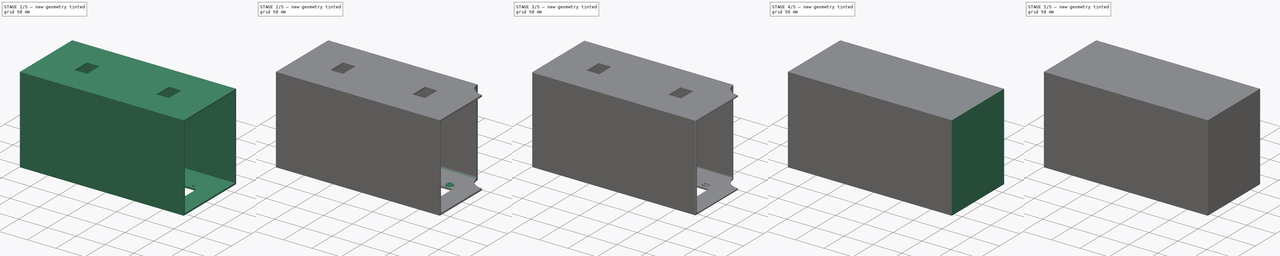
[diagram: build sequence overview — one tinted view per stage of 5, left to right]
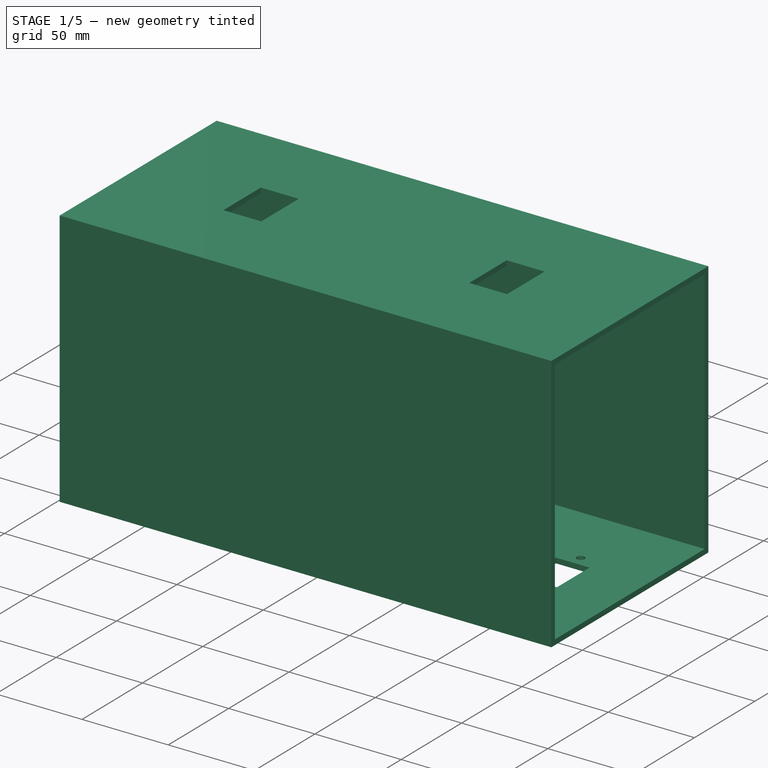
[diagram: stage 1 of 5 — iso view after this stage's code; geometry added in this stage tinted green]
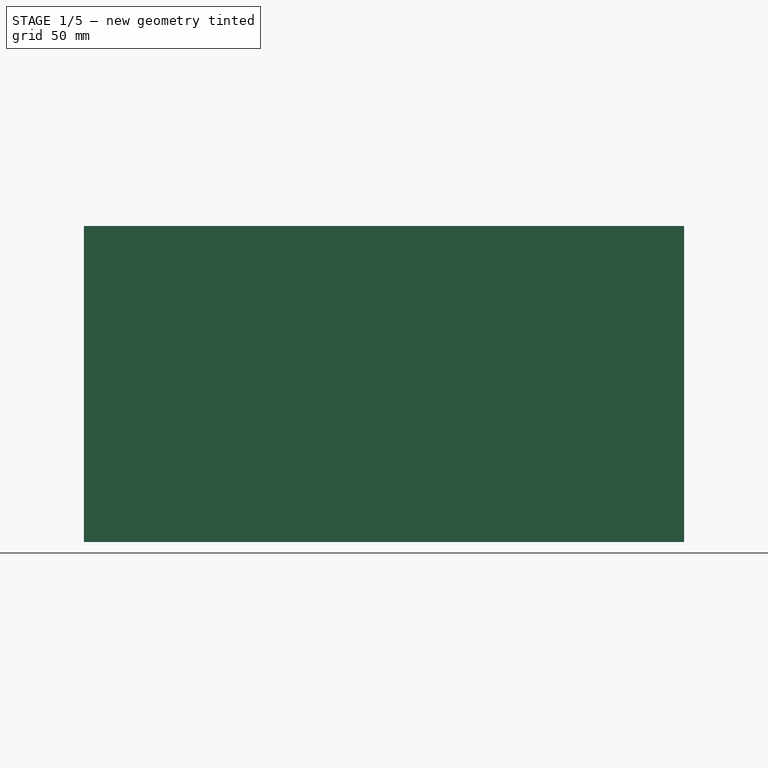
[diagram: stage 1 of 5 — front view after this stage's code; geometry added in this stage tinted green]
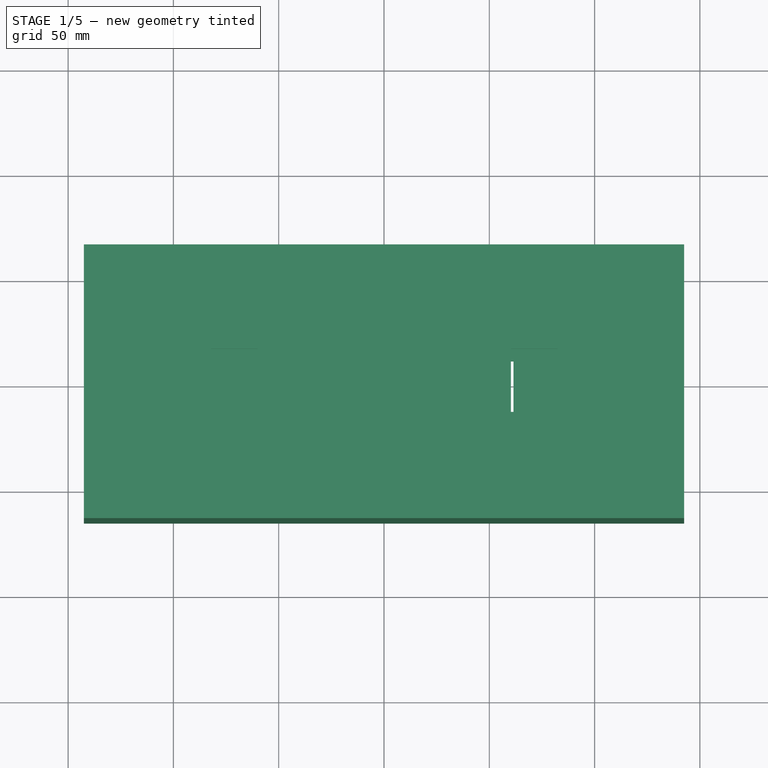
[diagram: stage 1 of 5 — top view after this stage's code; geometry added in this stage tinted green]
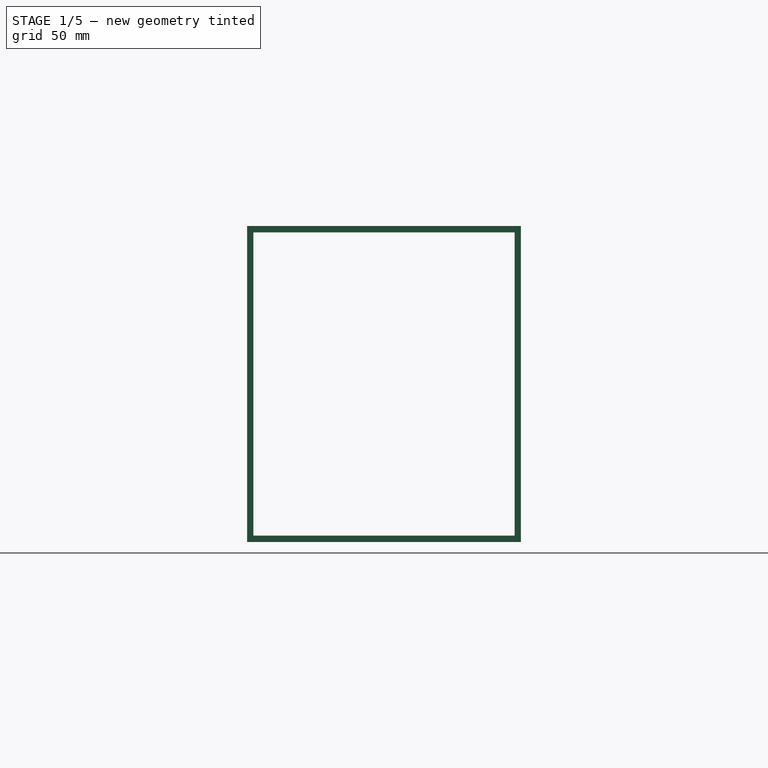
[diagram: stage 1 of 5 — right view after this stage's code; geometry added in this stage tinted green]
FCSTD DOCUMENT  (FreeCAD 0.22R36677 (Git))
Label: endcaps
License: All rights reserved
LicenseURL: http://en.wikipedia.org/wiki/All_rights_reserved
objects: Sketcher::SketchObject×11, PartDesign::Pad×6, PartDesign::Chamfer×5, PartDesign::Body×5, PartDesign::Pocket×4, PartDesign::Thickness×1, Spreadsheet::Sheet×1, PartDesign::Fillet×1
note: 50 computed .brp shape members not serialized (recipe doc carries the construction recipe); baked Part::Feature solids carry a one-line shape summary decoded from their .brp

FEATURE [PartDesign::Body] Body003  label="socket fitment"
  Group = -> [Sketch006,Pad003,Chamfer001,Chamfer002]
  Origin = -> Origin003
  Tip = -> Chamfer002
FEATURE [Sketcher::SketchObject] Sketch007
  AttachmentSupport = -> [YZ_Plane004]
  FullyConstrained = true
  MapMode = 5
  Placement = pos=(0,0,0) rot=(0.57735,0.57735,0.57735;2.0944rad)
  expr: Constraints[18] = <<q>>.right_depth
  expr: Constraints[19] = <<q>>.right_height
  expr: Constraints[20] = <<q>>.wall
  expr: Constraints[21] = <<q>>.wall
  sketch-geometry (8):
    g0: LineSegment StartX=-65 StartY=75 StartZ=0 EndX=-65 EndY=-75 EndZ=0
    g1: LineSegment StartX=-65 StartY=-75 StartZ=0 EndX=65 EndY=-75 EndZ=0
    g2: LineSegment StartX=65 StartY=-75 StartZ=0 EndX=65 EndY=75 EndZ=0
    g3: LineSegment StartX=65 StartY=75 StartZ=0 EndX=-65 EndY=75 EndZ=0
    g4: LineSegment StartX=-62 StartY=72 StartZ=0 EndX=-62 EndY=-72 EndZ=0
    g5: LineSegment StartX=-62 StartY=-72 StartZ=0 EndX=62 EndY=-72 EndZ=0
    g6: LineSegment StartX=62 StartY=-72 StartZ=0 EndX=62 EndY=72 EndZ=0
    g7: LineSegment StartX=62 StartY=72 StartZ=0 EndX=-62 EndY=72 EndZ=0
  constraints (22):
    c: Coincident(g0,g1)
    c: Coincident(g1,g2)
    c: Coincident(g2,g3)
    c: Coincident(g3,g0)
    c: Vertical(g0)
    c: Vertical(g2)
    c: Horizontal(g1)
    c: Horizontal(g3)
    c: Coincident(g4,g5)
    c: Coincident(g5,g6)
    c: Coincident(g6,g7)
    c: Coincident(g7,g4)
    c: Vertical(g4)
    c: Vertical(g6)
    c: Horizontal(g5)
    c: Horizontal(g7)
    c: Symmetric(g0,g2,g-1)
    c: Symmetric(g4,g6,g-1)
    c: DistanceX(g3,g3) = 130
    c: DistanceY(g2,g2) = 150
    c: DistanceX(g6,g2) = 3
    c: DistanceY(g6,g2) = 3
FEATURE [PartDesign::Pad] Pad004
  Direction = (1,0,0)
  Length = 285
  Length2 = 10
  Midplane = true
  Placement = pos=(0,0,0) rot=(1,1,1;2.0944rad)
  Profile = -> Sketch007
  ReferenceAxis = -> Sketch007 [N_Axis]
  Suppressed = false
  Type = 0
  expr: Length = <<q>>.right_width
FEATURE [Sketcher::SketchObject] Sketch008
  AttachmentSupport = -> [Pad004]
  FullyConstrained = true
  MapMode = 5
  Placement = pos=(-8.3e-15,2.5e-14,75) rot=(0,0,-1;1.5708rad)
  expr: Constraints[22] = <<q>>.right_width / 4
  expr: Constraints[8] = <<q>>.switch_width
  expr: Constraints[9] = <<q>>.switch_depth
  sketch-geometry (10):
    g0: LineSegment StartX=-15.5 StartY=82.25 StartZ=0 EndX=-15.5 EndY=60.25 EndZ=0
    g1: LineSegment StartX=-15.5 StartY=60.25 StartZ=0 EndX=15.5 EndY=60.25 EndZ=0
    g2: LineSegment StartX=15.5 StartY=60.25 StartZ=0 EndX=15.5 EndY=82.25 EndZ=0
    g3: LineSegment StartX=15.5 StartY=82.25 StartZ=0 EndX=-15.5 EndY=82.25 EndZ=0
    g4: GeomPoint X=0 Y=71.25 Z=0
    g5: LineSegment StartX=-15.5 StartY=-60.25 StartZ=0 EndX=-15.5 EndY=-82.25 EndZ=0
    g6: LineSegment StartX=-15.5 StartY=-82.25 StartZ=0 EndX=15.5 EndY=-82.25 EndZ=0
    g7: LineSegment StartX=15.5 StartY=-82.25 StartZ=0 EndX=15.5 EndY=-60.25 EndZ=0
    g8: LineSegment StartX=15.5 StartY=-60.25 StartZ=0 EndX=-15.5 EndY=-60.25 EndZ=0
    g9: GeomPoint X=-5e-16 Y=-71.25 Z=0
  constraints (25):
    c: Coincident(g0,g1)
    c: Coincident(g1,g2)
    c: Coincident(g2,g3)
    c: Coincident(g3,g0)
    c: Vertical(g0)
    c: Vertical(g2)
    c: Horizontal(g1)
    c: Horizontal(g3)
    c: DistanceY(g2,g2) = 22
    c: DistanceX(g1,g1) = 31
    c: Symmetric(g0,g2,g4)
    c: Coincident(g5,g6)
    c: Coincident(g6,g7)
    c: Coincident(g7,g8)
    c: Coincident(g8,g5)
    c: Vertical(g5)
    c: Vertical(g7)
    c: Horizontal(g6)
    c: Horizontal(g8)
    c: DistanceY(g7,g7) = 22
    c: DistanceX(g6,g6) = 31
    c: Symmetric(g5,g7,g9)
    c: DistanceY(g9,g-1) = 71.25
    c: Symmetric(g9,g4,g-1)
    c: PointOnObject(g9,g-2)
FEATURE [PartDesign::Pocket] Pocket001
  BaseFeature = -> Pad004
  Direction = (0,0,-1)
  Length = 5
  Length2 = 5
  Placement = pos=(0,0,0) rot=(1,1,1;2.0944rad)
  Profile = -> Sketch008
  ReferenceAxis = -> Sketch008 [N_Axis]
  Suppressed = false
  Type = 0
FEATURE [Sketcher::SketchObject] Sketch009
  AttachmentSupport = -> [Pocket001]
  FullyConstrained = true
  MapMode = 5
  Placement = pos=(3.33e-14,-3.33e-14,-75) rot=(0.707107,0.707107,0;3.14159rad)
  expr: Constraints[16] = <<q>>.power_inlet_height
  expr: Constraints[17] = <<q>>.power_inlet_width
  expr: Constraints[20] = <<q>>.power_inlet_screw
  expr: Constraints[21] = <<q>>.power_inlet_c2c
  expr: Constraints[24] = <<q>>.power_socket_width
  expr: Constraints[25] = <<q>>.power_socket_height
  sketch-geometry (26):
    g0: LineSegment StartX=-13.5 StartY=109.75 StartZ=0 EndX=-13.5 EndY=90.25 EndZ=0
    g1: LineSegment StartX=-13.5 StartY=90.25 StartZ=0 EndX=13.5 EndY=90.25 EndZ=0
    g2: LineSegment StartX=13.5 StartY=90.25 StartZ=0 EndX=13.5 EndY=109.75 EndZ=0
    g3: LineSegment StartX=13.5 StartY=109.75 StartZ=0 EndX=-13.5 EndY=109.75 EndZ=0
    g4: LineSegment StartX=-12 StartY=61.5 StartZ=0 EndX=-12 EndY=38.5 EndZ=0
    g5: LineSegment StartX=-12 StartY=38.5 StartZ=0 EndX=12 EndY=38.5 EndZ=0
    g6: LineSegment StartX=12 StartY=38.5 StartZ=0 EndX=12 EndY=61.5 EndZ=0
    g7: LineSegment StartX=12 StartY=61.5 StartZ=0 EndX=-12 EndY=61.5 EndZ=0
    g8: GeomPoint X=0 Y=100 Z=0
    g9: Circle CenterX=20 CenterY=100 CenterZ=0 NormalX=0 NormalY=0 NormalZ=1 AngleXU=0 Radius=2.3
    g10: Circle CenterX=-20 CenterY=100 CenterZ=0 NormalX=0 NormalY=0 NormalZ=1 AngleXU=0 Radius=2.3
    g11: GeomPoint X=0 Y=50 Z=0
    g12: GeomPoint X=0 Y=75 Z=0
    g13: LineSegment StartX=-13.5 StartY=-40.25 StartZ=0 EndX=-13.5 EndY=-59.75 EndZ=0
    g14: LineSegment StartX=-13.5 StartY=-59.75 StartZ=0 EndX=13.5 EndY=-59.75 EndZ=0
    g15: LineSegment StartX=13.5 StartY=-59.75 StartZ=0 EndX=13.5 EndY=-40.25 EndZ=0
    g16: LineSegment StartX=13.5 StartY=-40.25 StartZ=0 EndX=-13.5 EndY=-40.25 EndZ=0
    g17: LineSegment StartX=-12 StartY=-88.5 StartZ=0 EndX=-12 EndY=-111.5 EndZ=0
    g18: LineSegment StartX=-12 StartY=-111.5 StartZ=0 EndX=12 EndY=-111.5 EndZ=0
    g19: LineSegment StartX=12 StartY=-111.5 StartZ=0 EndX=12 EndY=-88.5 EndZ=0
    g20: LineSegment StartX=12 StartY=-88.5 StartZ=0 EndX=-12 EndY=-88.5 EndZ=0
    g21: GeomPoint X=0 Y=-50 Z=0
    g22: Circle CenterX=20 CenterY=-50 CenterZ=0 NormalX=0 NormalY=0 NormalZ=1 AngleXU=0 Radius=2.3
    g23: Circle CenterX=-20 CenterY=-50 CenterZ=0 NormalX=0 NormalY=0 NormalZ=1 AngleXU=0 Radius=2.3
    g24: GeomPoint X=0 Y=-100 Z=0
    g25: GeomPoint X=0 Y=-75 Z=0
  constraints (64):
    c: Coincident(g0,g1)
    c: Coincident(g1,g2)
    c: Coincident(g2,g3)
    c: Coincident(g3,g0)
    c: Vertical(g0)
    c: Vertical(g2)
    c: Horizontal(g1)
    c: Horizontal(g3)
    c: Coincident(g4,g5)
    c: Coincident(g5,g6)
    c: Coincident(g6,g7)
    c: Coincident(g7,g4)
    c: Vertical(g4)
    c: Vertical(g6)
    c: Horizontal(g5)
    c: Horizontal(g7)
    c: DistanceY(g2,g2) = 19.5
    c: DistanceX(g1,g1) = 27
    c: Symmetric(g0,g2,g8)
    c: Equal(g9,g10)
    c: Diameter(g9) = 4.6
    c: DistanceX(g10,g9) = 40
    c: Horizontal(g9,g8)
    c: Symmetric(g9,g10,g8)
    c: DistanceX(g7,g7) = 24
    c: DistanceY(g6,g6) = 23
    c: Symmetric(g4,g6,g11)
    c: Vertical(g11,g8)
    c: Symmetric(g11,g8,g12)
    c: DistanceY(g11,g8) = 50
    c: DistanceY(g-1,g11) = 50
    c: PointOnObject(g8,g-2)
    c: Coincident(g13,g14)
    c: Coincident(g14,g15)
    c: Coincident(g15,g16)
    c: Coincident(g16,g13)
    c: Vertical(g13)
    c: Vertical(g15)
    c: Horizontal(g14)
    c: Horizontal(g16)
    c: Coincident(g17,g18)
    c: Coincident(g18,g19)
    c: Coincident(g19,g20)
    c: Coincident(g20,g17)
    c: Vertical(g17)
    c: Vertical(g19)
    c: Horizontal(g18)
    c: Horizontal(g20)
    c: DistanceY(g15,g15) = 19.5
    c: DistanceX(g14,g14) = 27
    c: Symmetric(g13,g15,g21)
    c: Equal(g22,g23)
    c: Diameter(g22) = 4.6
    c: DistanceX(g23,g22) = 40
    c: Horizontal(g22,g21)
    c: Symmetric(g22,g23,g21)
    c: DistanceX(g20,g20) = 24
    c: DistanceY(g19,g19) = 23
    c: Symmetric(g17,g19,g24)
    c: Vertical(g24,g21)
    c: Symmetric(g24,g21,g25)
    c: DistanceY(g24,g21) = 50
    c: DistanceY(g21,g-1) = 50
    c: PointOnObject(g24,g-2)
FEATURE [PartDesign::Pocket] Pocket002
  BaseFeature = -> Pocket001
  Direction = (0,0,1)
  Length = 5
  Length2 = 5
  Placement = pos=(0,0,0) rot=(1,1,1;2.0944rad)
  Profile = -> Sketch009
  ReferenceAxis = -> Sketch009 [N_Axis]
  Suppressed = false
  Type = 0
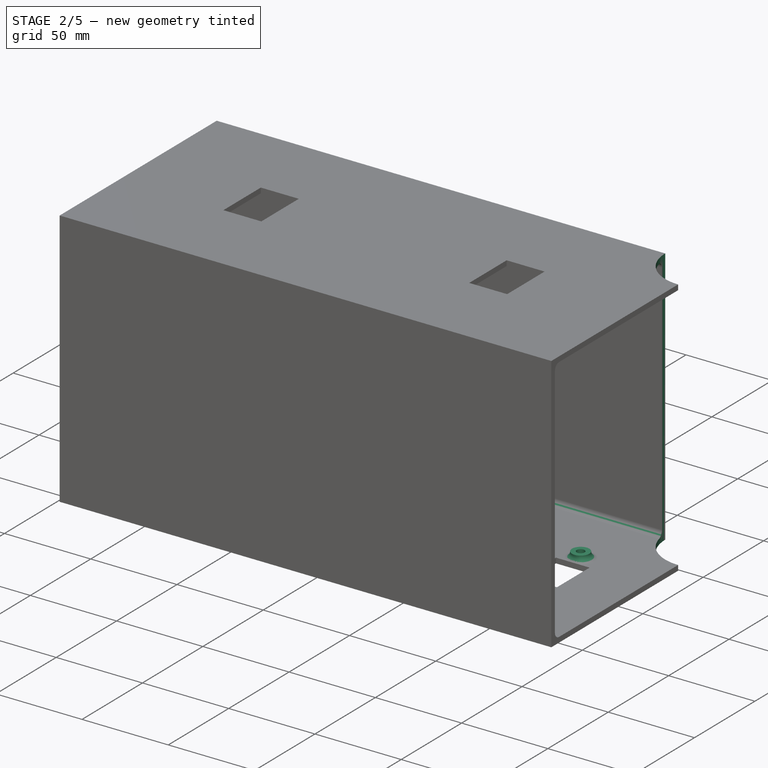
[diagram: stage 2 of 5 — iso view after this stage's code; geometry added in this stage tinted green]
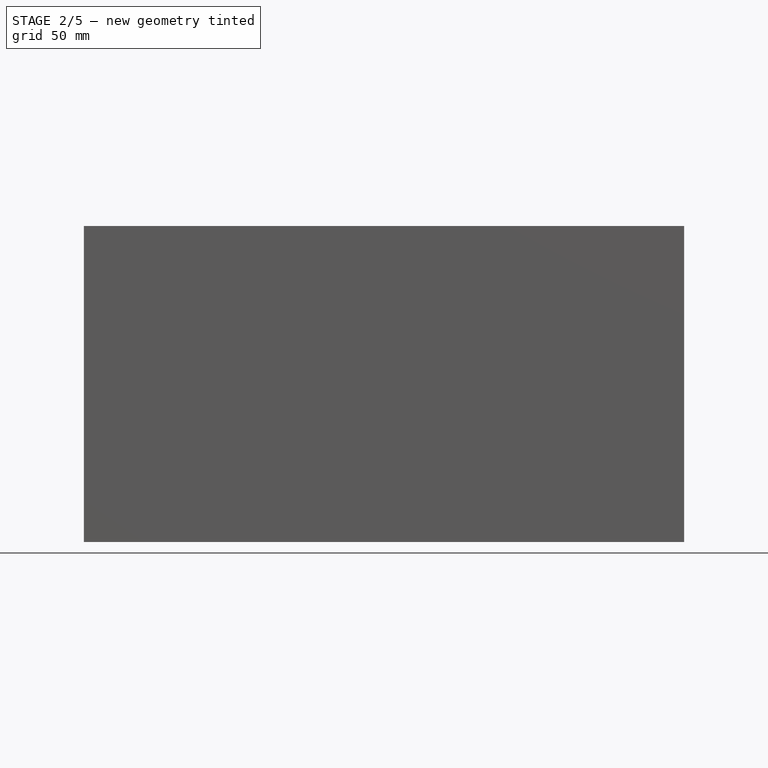
[diagram: stage 2 of 5 — front view after this stage's code; geometry added in this stage tinted green]
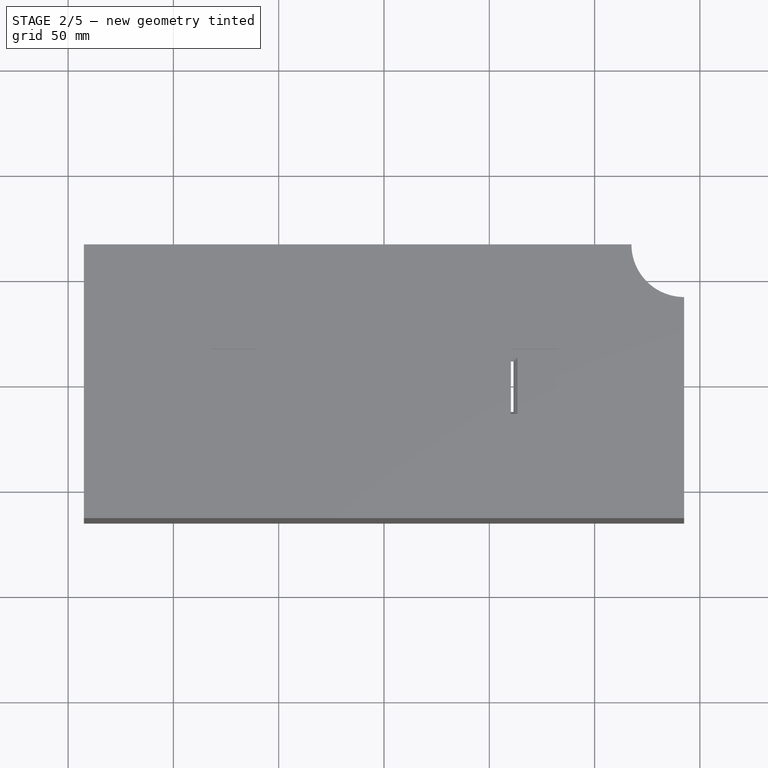
[diagram: stage 2 of 5 — top view after this stage's code; geometry added in this stage tinted green]
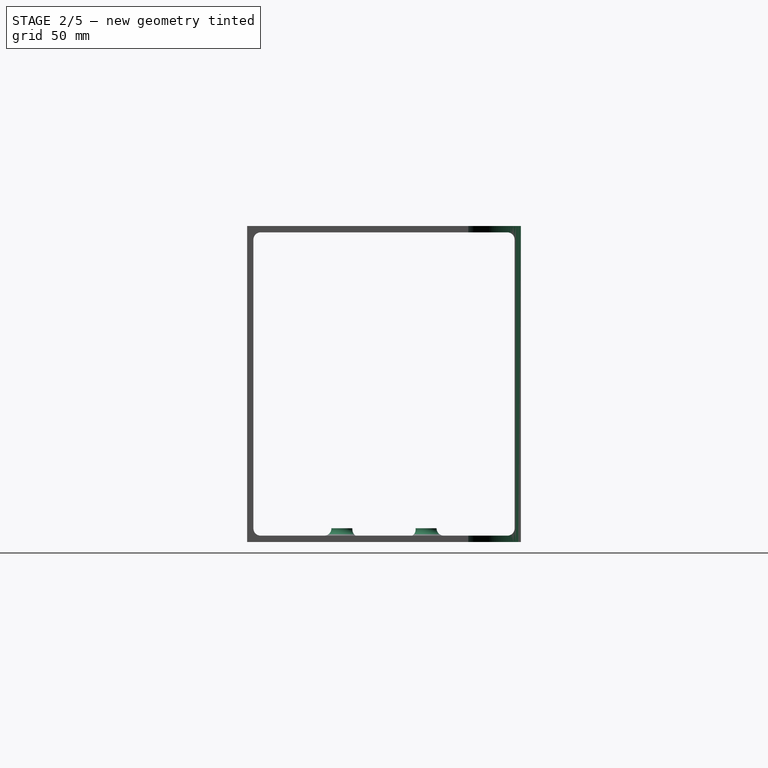
[diagram: stage 2 of 5 — right view after this stage's code; geometry added in this stage tinted green]
FEATURE [Sketcher::SketchObject] Sketch010
  AttachmentSupport = -> [Pocket002]
  FullyConstrained = true
  MapMode = 5
  Placement = pos=(-5.83e-14,4.16e-14,75) rot=(0,0,-1;1.5708rad)
  expr: Constraints[0] = <<q>>.right_depth / 2
  expr: Constraints[1] = <<q>>.right_width / 2
  sketch-geometry (1):
    g0: Circle CenterX=-65 CenterY=142.5 CenterZ=0 NormalX=0 NormalY=0 NormalZ=1 AngleXU=0 Radius=25
  constraints (3):
    c: DistanceX(g0,g-1) = 65
    c: DistanceY(g-1,g0) = 142.5
    c: Diameter(g0) = 50
FEATURE [PartDesign::Pocket] Pocket003
  BaseFeature = -> Pocket002
  Direction = (0,0,-1)
  Length = 5
  Length2 = 5
  Placement = pos=(0,0,0) rot=(1,1,1;2.0944rad)
  Profile = -> Sketch010
  ReferenceAxis = -> Sketch010 [N_Axis]
  Suppressed = false
  Type = 1
FEATURE [Sketcher::SketchObject] Sketch012
  AttachmentSupport = -> [Pocket003]
  FullyConstrained = false
  MapMode = 5
  Placement = pos=(7.99e-14,-4.8e-14,-72) rot=(0,0,-1;1.5708rad)
  expr: Constraints[1] = <<q>>.power_inlet_screw
  sketch-geometry (8):
    g0: Circle CenterX=20 CenterY=-50 CenterZ=0 NormalX=0 NormalY=0 NormalZ=1 AngleXU=0 Radius=2.3
    g1: Circle CenterX=20 CenterY=-50 CenterZ=0 NormalX=0 NormalY=0 NormalZ=1 AngleXU=0 Radius=5
    g2: Circle CenterX=20 CenterY=100 CenterZ=0 NormalX=0 NormalY=0 NormalZ=1 AngleXU=0 Radius=2.3
    g3: Circle CenterX=20 CenterY=100 CenterZ=0 NormalX=0 NormalY=0 NormalZ=1 AngleXU=0 Radius=5
    g4: Circle CenterX=-20 CenterY=-50 CenterZ=0 NormalX=0 NormalY=0 NormalZ=1 AngleXU=0 Radius=2.3
    g5: Circle CenterX=-20 CenterY=-50 CenterZ=0 NormalX=0 NormalY=0 NormalZ=1 AngleXU=0 Radius=5
    g6: Circle CenterX=-20 CenterY=100 CenterZ=0 NormalX=0 NormalY=0 NormalZ=1 AngleXU=0 Radius=2.3
    g7: Circle CenterX=-20 CenterY=100 CenterZ=0 NormalX=0 NormalY=0 NormalZ=1 AngleXU=0 Radius=5
  constraints (12):
    c: Coincident(g1,g0)
    c: Diameter(g0) = 4.6
    c: Diameter(g1) = 10
    c: Coincident(g3,g2)
    c: Diameter(g2) = 4.6
    c: Diameter(g3) = 10
    c: Coincident(g5,g4)
    c: Diameter(g4) = 4.6
    c: Diameter(g5) = 10
    c: Coincident(g7,g6)
    c: Diameter(g6) = 4.6
    c: Diameter(g7) = 10
FEATURE [PartDesign::Pad] Pad005
  BaseFeature = -> Pocket003
  Direction = (-1.1e-15,0,1)
  Length = 3.5
  Length2 = 10
  Placement = pos=(0,0,0) rot=(1,1,1;2.0944rad)
  Profile = -> Sketch012
  ReferenceAxis = -> Sketch012 [N_Axis]
  Suppressed = false
  Type = 0
FEATURE [PartDesign::Chamfer] Chamfer003
  Angle = 45
  Base = -> Pad005 [Edge89,Edge85,Edge83,Edge88,Edge110,Edge114,Edge113,Edge108]
  BaseFeature = -> Pad005
  ChamferType = 0
  FlipDirection = false
  Placement = pos=(0,0,0) rot=(1,1,1;2.0944rad)
  Size = 1.9
  Size2 = 1
  SupportTransform = false
  Suppressed = false
  UseAllEdges = false
FEATURE [PartDesign::Fillet] Fillet
  Base = -> Chamfer003 [Edge51,Edge57,Edge52,Edge46,Edge43,Edge42,Edge109,Edge110]
  BaseFeature = -> Chamfer003
  Placement = pos=(0,0,0) rot=(1,1,1;2.0944rad)
  Radius = 3.4
  SupportTransform = false
  Suppressed = false
  UseAllEdges = false
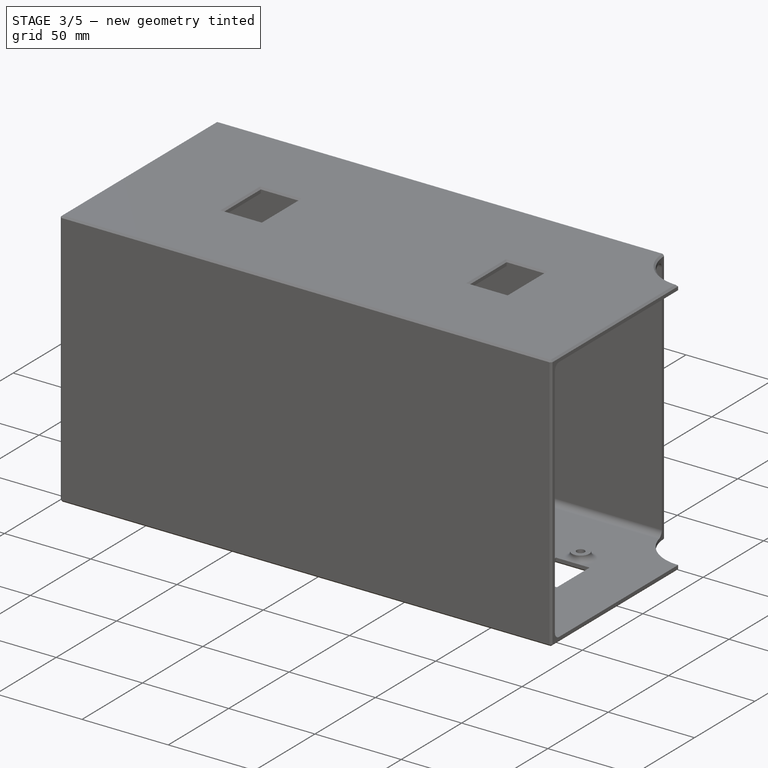
[diagram: stage 3 of 5 — iso view after this stage's code; geometry added in this stage tinted green]
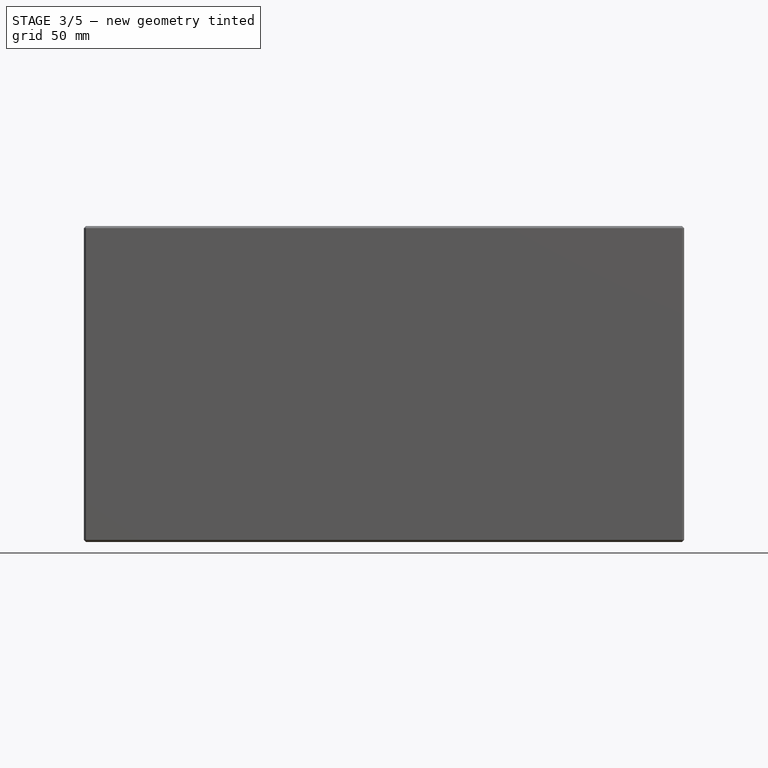
[diagram: stage 3 of 5 — front view after this stage's code; geometry added in this stage tinted green]
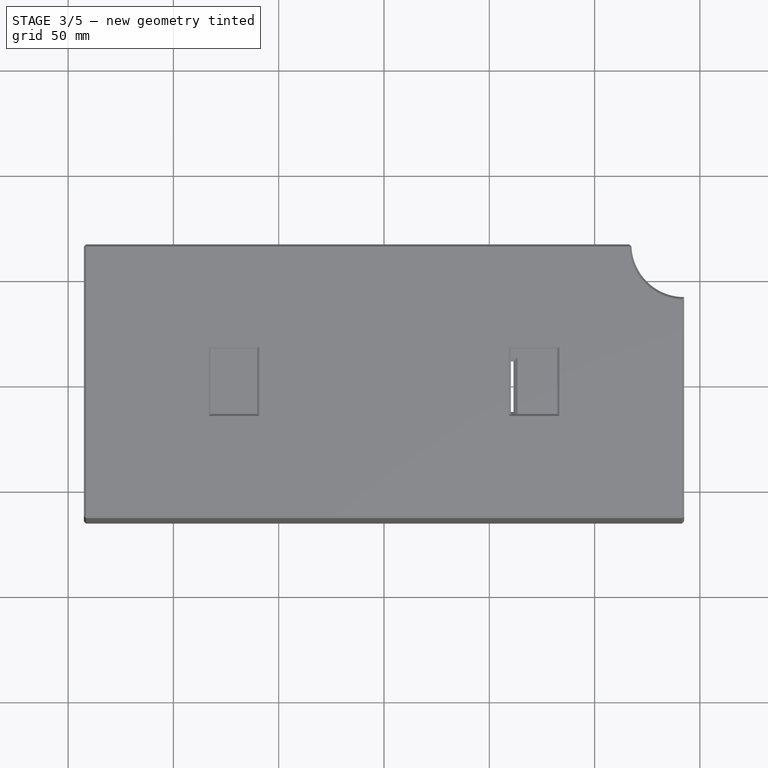
[diagram: stage 3 of 5 — top view after this stage's code; geometry added in this stage tinted green]
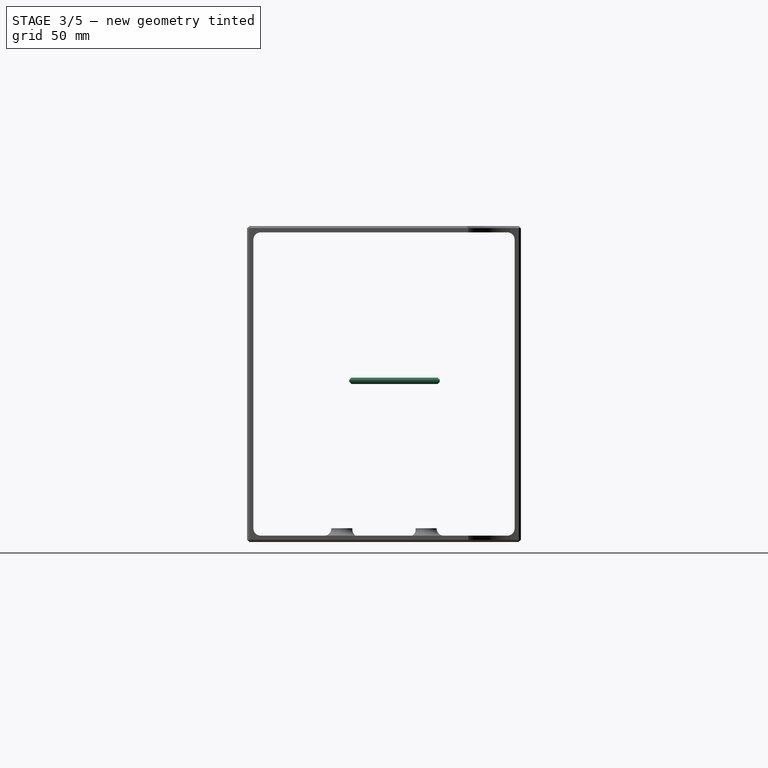
[diagram: stage 3 of 5 — right view after this stage's code; geometry added in this stage tinted green]
FEATURE [PartDesign::Body] Body002  label="inlet fitment"
  Group = -> [Sketch005,Pad002]
  Origin = -> Origin002
  Tip = -> Pad002
FEATURE [Sketcher::SketchObject] Sketch006
  AttachmentSupport = -> [XY_Plane003]
  FullyConstrained = false
  MapMode = 5
  expr: Constraints[16] = <<q>>.power_socket_width
  expr: Constraints[17] = <<q>>.power_socket_height
  sketch-geometry (8):
    g0: LineSegment StartX=-10.877 StartY=14.6348 StartZ=0 EndX=-10.877 EndY=-8.3652 EndZ=0
    g1: LineSegment StartX=-10.877 StartY=-8.3652 StartZ=0 EndX=13.123 EndY=-8.3652 EndZ=0
    g2: LineSegment StartX=13.123 StartY=-8.3652 StartZ=0 EndX=13.123 EndY=14.6348 EndZ=0
    g3: LineSegment StartX=13.123 StartY=14.6348 StartZ=0 EndX=-10.877 EndY=14.6348 EndZ=0
    g4: LineSegment StartX=-26.5416 StartY=26.4723 StartZ=0 EndX=-26.5416 EndY=-16.481 EndZ=0
    g5: LineSegment StartX=-26.5416 StartY=-16.481 StartZ=0 EndX=29.264 EndY=-16.481 EndZ=0
    g6: LineSegment StartX=29.264 StartY=-16.481 StartZ=0 EndX=29.264 EndY=26.4723 EndZ=0
    g7: LineSegment StartX=29.264 StartY=26.4723 StartZ=0 EndX=-26.5416 EndY=26.4723 EndZ=0
  constraints (18):
    c: Coincident(g0,g1)
    c: Coincident(g1,g2)
    c: Coincident(g2,g3)
    c: Coincident(g3,g0)
    c: Vertical(g0)
    c: Vertical(g2)
    c: Horizontal(g1)
    c: Horizontal(g3)
    c: Coincident(g4,g5)
    c: Coincident(g5,g6)
    c: Coincident(g6,g7)
    c: Coincident(g7,g4)
    c: Vertical(g4)
    c: Vertical(g6)
    c: Horizontal(g5)
    c: Horizontal(g7)
    c: DistanceX(g3,g3) = 24
    c: DistanceY(g2,g2) = 23
FEATURE [PartDesign::Pad] Pad003
  Direction = (0,0,1)
  Length = 3
  Length2 = 10
  Profile = -> Sketch006
  ReferenceAxis = -> Sketch006 [N_Axis]
  Suppressed = false
  Type = 0
FEATURE [PartDesign::Chamfer] Chamfer001
  Angle = 45
  Base = -> Pad003 [Edge7,Edge10,Edge12,Edge4,Edge6,Edge9,Edge11,Edge3]
  BaseFeature = -> Pad003
  ChamferType = 0
  FlipDirection = false
  Size = 1
  Size2 = 1
  SupportTransform = false
  Suppressed = false
  UseAllEdges = false
FEATURE [PartDesign::Chamfer] Chamfer004
  Angle = 45
  Base = -> Fillet [Face37,Face34,Face36,Face35]
  BaseFeature = -> Fillet
  ChamferType = 0
  FlipDirection = false
  Placement = pos=(0,0,0) rot=(1,1,1;2.0944rad)
  Size = 1
  Size2 = 1
  SupportTransform = false
  Suppressed = false
  UseAllEdges = false
FEATURE [PartDesign::Body] Body004  label="right panel v2"
  Group = -> [Sketch007,Pad004,Sketch008,Pocket001,Sketch009,Pocket002,Sketch010,Pocket003,Sketch012,Pad005,Chamfer003,Fillet,Chamfer004]
  Origin = -> Origin004
  Tip = -> Chamfer004
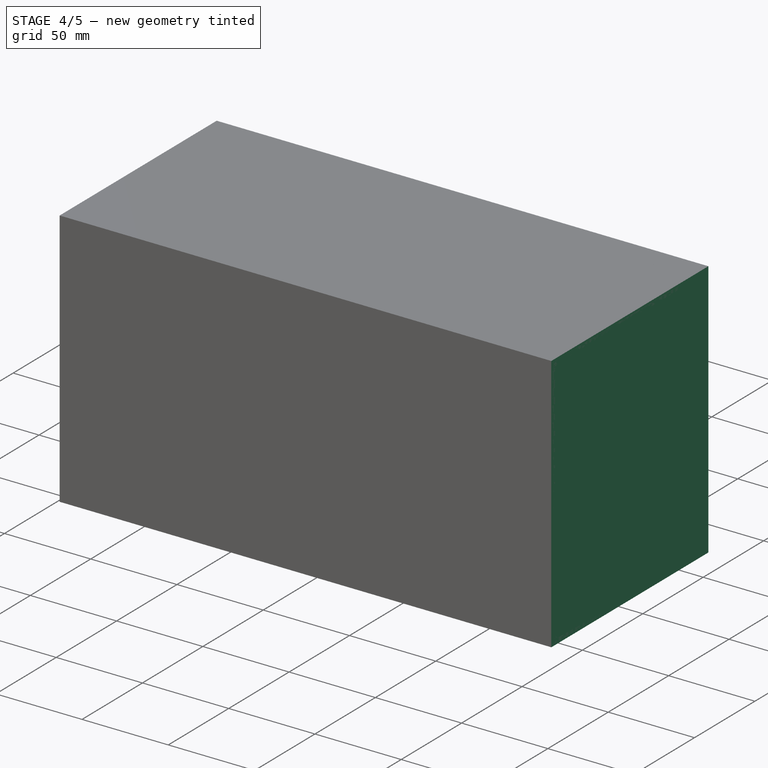
[diagram: stage 4 of 5 — iso view after this stage's code; geometry added in this stage tinted green]
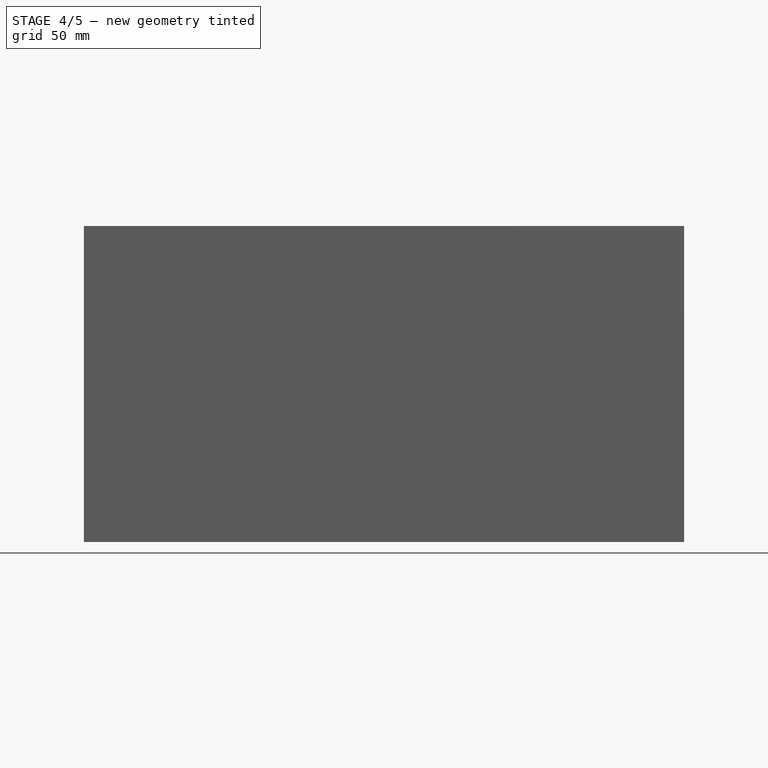
[diagram: stage 4 of 5 — front view after this stage's code; geometry added in this stage tinted green]
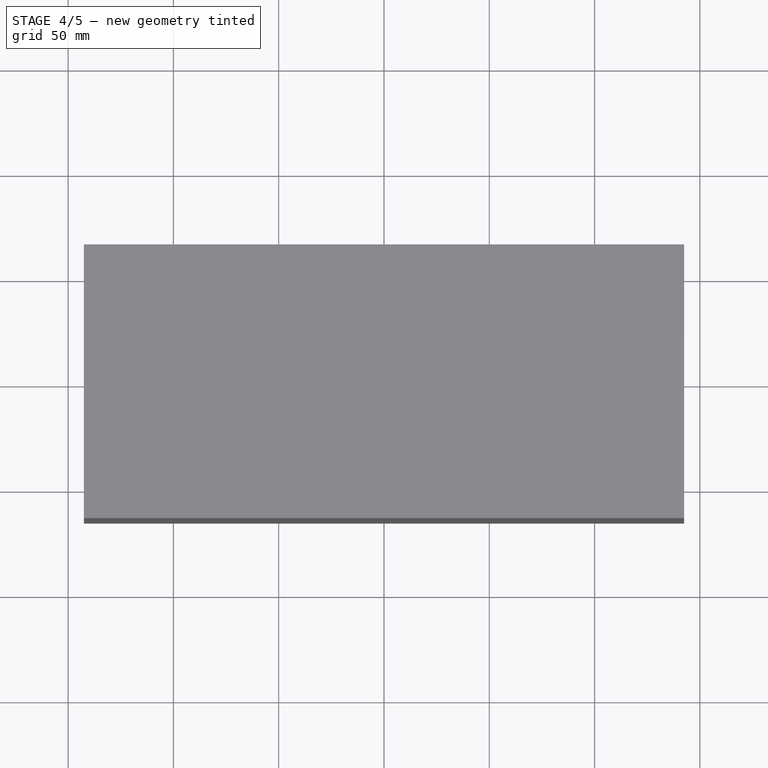
[diagram: stage 4 of 5 — top view after this stage's code; geometry added in this stage tinted green]
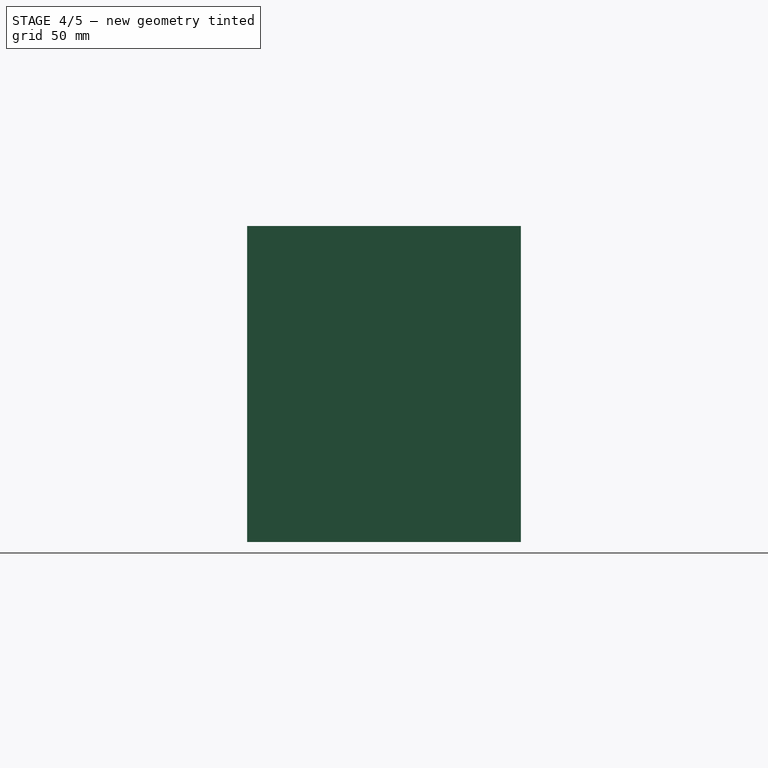
[diagram: stage 4 of 5 — right view after this stage's code; geometry added in this stage tinted green]
FEATURE [Sketcher::SketchObject] Sketch
  AttachmentSupport = -> [XY_Plane]
  FullyConstrained = true
  MapMode = 5
  expr: Constraints[8] = <<q>>.right_width
  expr: Constraints[9] = <<q>>.right_depth
  sketch-geometry (4):
    g0: LineSegment StartX=-142.5 StartY=65 StartZ=0 EndX=-142.5 EndY=-65 EndZ=0
    g1: LineSegment StartX=-142.5 StartY=-65 StartZ=0 EndX=142.5 EndY=-65 EndZ=0
    g2: LineSegment StartX=142.5 StartY=-65 StartZ=0 EndX=142.5 EndY=65 EndZ=0
    g3: LineSegment StartX=142.5 StartY=65 StartZ=0 EndX=-142.5 EndY=65 EndZ=0
  constraints (11):
    c: Coincident(g0,g1)
    c: Coincident(g1,g2)
    c: Coincident(g2,g3)
    c: Coincident(g3,g0)
    c: Vertical(g0)
    c: Vertical(g2)
    c: Horizontal(g1)
    c: Horizontal(g3)
    c: DistanceX(g3,g3) = 285
    c: DistanceY(g2,g2) = 130
    c: Symmetric(g0,g2,g-1)
FEATURE [PartDesign::Pad] Pad
  Direction = (0,0,1)
  Length = 150
  Length2 = 10
  Midplane = true
  Profile = -> Sketch
  ReferenceAxis = -> Sketch [N_Axis]
  Suppressed = false
  Type = 0
  expr: Length = <<q>>.right_height
FEATURE [PartDesign::Thickness] Thickness
  Base = -> Pad [Face5]
  BaseFeature = -> Pad
  Intersection = false
  Join = 0
  Mode = 0
  Reversed = true
  SupportTransform = false
  Suppressed = false
  Value = 3
  expr: Value = <<q>>.wall
FEATURE [PartDesign::Body] Body001  label="switch fitment"
  Group = -> [Sketch002,Pad001,Chamfer]
  Origin = -> Origin001
  Tip = -> Chamfer
FEATURE [Sketcher::SketchObject] Sketch003
  AttachmentSupport = -> [Pocket]
  ExternalGeometry = -> [Pocket]
  FullyConstrained = true
  MapMode = 5
  Placement = pos=(0,-65,0) rot=(1,0,0;1.5708rad)
  expr: Constraints[18] = <<q>>.power_inlet_width
  expr: Constraints[19] = <<q>>.power_inlet_height
  expr: Constraints[26] = <<q>>.power_inlet_screw
  expr: Constraints[27] = <<q>>.power_inlet_c2c
  expr: Constraints[28] = <<q>>.power_inlet_c2c
  sketch-geometry (14):
    g0: LineSegment StartX=86.5 StartY=9.75 StartZ=0 EndX=86.5 EndY=-9.75 EndZ=0
    g1: LineSegment StartX=86.5 StartY=-9.75 StartZ=0 EndX=113.5 EndY=-9.75 EndZ=0
    g2: LineSegment StartX=113.5 StartY=-9.75 StartZ=0 EndX=113.5 EndY=9.75 EndZ=0
    g3: LineSegment StartX=113.5 StartY=9.75 StartZ=0 EndX=86.5 EndY=9.75 EndZ=0
    g4: LineSegment StartX=-56 StartY=9.75 StartZ=0 EndX=-56 EndY=-9.75 EndZ=0
    g5: LineSegment StartX=-56 StartY=-9.75 StartZ=0 EndX=-29 EndY=-9.75 EndZ=0
    g6: LineSegment StartX=-29 StartY=-9.75 StartZ=0 EndX=-29 EndY=9.75 EndZ=0
    g7: LineSegment StartX=-29 StartY=9.75 StartZ=0 EndX=-56 EndY=9.75 EndZ=0
    g8: Circle CenterX=120 CenterY=0 CenterZ=0 NormalX=0 NormalY=0 NormalZ=1 AngleXU=0 Radius=2.3
    g9: Circle CenterX=80 CenterY=4.3e-15 CenterZ=0 NormalX=0 NormalY=0 NormalZ=1 AngleXU=0 Radius=2.3
    g10: Circle CenterX=-22.5 CenterY=0 CenterZ=0 NormalX=0 NormalY=0 NormalZ=1 AngleXU=0 Radius=2.3
    g11: Circle CenterX=-62.5 CenterY=7e-16 CenterZ=0 NormalX=0 NormalY=0 NormalZ=1 AngleXU=0 Radius=2.3
    g12: GeomPoint X=-42.5 Y=2e-15 Z=0
    g13: GeomPoint X=100 Y=2.2e-15 Z=0
  constraints (35):
    c: Coincident(g0,g1)
    c: Coincident(g1,g2)
    c: Coincident(g2,g3)
    c: Coincident(g3,g0)
    c: Vertical(g0)
    c: Horizontal(g1)
    c: Horizontal(g3)
    c: Coincident(g4,g5)
    c: Coincident(g5,g6)
    c: Coincident(g6,g7)
    c: Coincident(g7,g4)
    c: Vertical(g4)
    c: Vertical(g6)
    c: Horizontal(g5)
    c: Horizontal(g7)
    c: Equal(g5,g1)
    c: Equal(g0,g6)
    c: Horizontal(g5,g0)
    c: DistanceX(g1,g1) = 27
    c: DistanceY(g2,g2) = 19.5
    c: Symmetric(g2,g1,g-1)
    c: PointOnObject(g8,g-1)
    c: PointOnObject(g10,g-1)
    c: Equal(g8,g9)
    c: Equal(g8,g10)
    c: Equal(g8,g11)
    c: Diameter(g8) = 4.6
    c: DistanceX(g9,g8) = 40
    c: DistanceX(g11,g10) = 40
    c: Symmetric(g4,g6,g12)
    c: Symmetric(g0,g2,g13)
    c: Symmetric(g9,g8,g13)
    c: Symmetric(g11,g10,g12)
    c: DistanceX(g-1,g13) = 100
    c: DistanceX(g-3,g12) = 100
FEATURE [PartDesign::Body] Body  label="right panel"
  Group = -> [Sketch,Pad,Thickness,Sketch001,Pocket,Sketch003]
  Origin = -> Origin
  Tip = -> Pocket
FEATURE [Sketcher::SketchObject] Sketch005
  AttachmentSupport = -> [XY_Plane002]
  FullyConstrained = false
  MapMode = 5
  sketch-geometry (11):
    g0: LineSegment StartX=86.5 StartY=9.75 StartZ=0 EndX=86.5 EndY=-9.75 EndZ=0
    g1: LineSegment StartX=86.5 StartY=-9.75 StartZ=0 EndX=113.5 EndY=-9.75 EndZ=0
    g2: LineSegment StartX=113.5 StartY=-9.75 StartZ=0 EndX=113.5 EndY=9.75 EndZ=0
    g3: LineSegment StartX=113.5 StartY=9.75 StartZ=0 EndX=86.5 EndY=9.75 EndZ=0
    g4: Circle CenterX=120 CenterY=0 CenterZ=0 NormalX=0 NormalY=0 NormalZ=1 AngleXU=0 Radius=2.3
    g5: Circle CenterX=80 CenterY=0 CenterZ=0 NormalX=0 NormalY=0 NormalZ=1 AngleXU=0 Radius=2.3
    g6: GeomPoint X=100 Y=0 Z=0
    g7: LineSegment StartX=71.2268 StartY=19.0603 StartZ=0 EndX=71.2268 EndY=-20.9078 EndZ=0
    g8: LineSegment StartX=71.2268 StartY=-20.9078 StartZ=0 EndX=128.064 EndY=-20.9078 EndZ=0
    g9: LineSegment StartX=128.064 StartY=-20.9078 StartZ=0 EndX=128.064 EndY=19.0603 EndZ=0
    g10: LineSegment StartX=128.064 StartY=19.0603 StartZ=0 EndX=71.2268 EndY=19.0603 EndZ=0
  constraints (25):
    c: Coincident(g0,g1)
    c: Coincident(g1,g2)
    c: Coincident(g2,g3)
    c: Coincident(g3,g0)
    c: Vertical(g0)
    c: Horizontal(g1)
    c: Horizontal(g3)
    c: DistanceX(g1,g1) = 27
    c: DistanceY(g2,g2) = 19.5
    c: Symmetric(g2,g1,g-1)
    c: PointOnObject(g4,g-1)
    c: Equal(g4,g5)
    c: Diameter(g4) = 4.6
    c: DistanceX(g5,g4) = 40
    c: Symmetric(g0,g2,g6)
    c: Symmetric(g5,g4,g6)
    c: DistanceX(g-1,g6) = 100
    c: Coincident(g7,g8)
    c: Coincident(g8,g9)
    c: Coincident(g9,g10)
    c: Coincident(g10,g7)
    c: Vertical(g7)
    c: Vertical(g9)
    c: Horizontal(g8)
    c: Horizontal(g10)
FEATURE [PartDesign::Pad] Pad002
  Direction = (0,0,1)
  Length = 3
  Length2 = 10
  Profile = -> Sketch005
  ReferenceAxis = -> Sketch005 [N_Axis]
  Suppressed = false
  Type = 0
FEATURE [PartDesign::Chamfer] Chamfer002
  Angle = 45
  Base = -> Chamfer001 [Edge35,Edge34,Edge33,Edge32]
  BaseFeature = -> Chamfer001
  ChamferType = 0
  FlipDirection = false
  Size = 2.4
  Size2 = 1
  SupportTransform = false
  Suppressed = false
  UseAllEdges = false
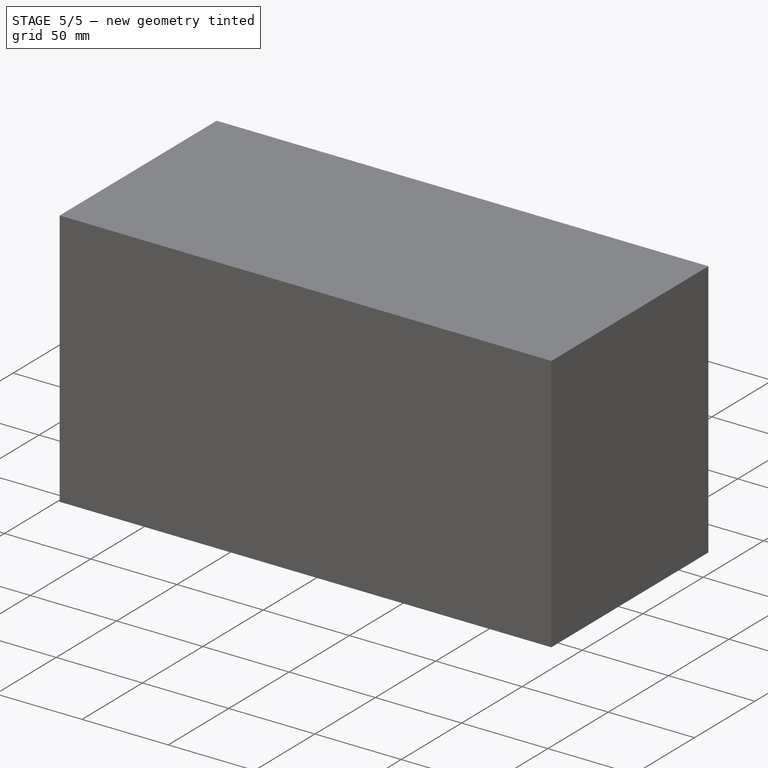
[diagram: stage 5 of 5 — iso view after this stage's code; geometry added in this stage tinted green]
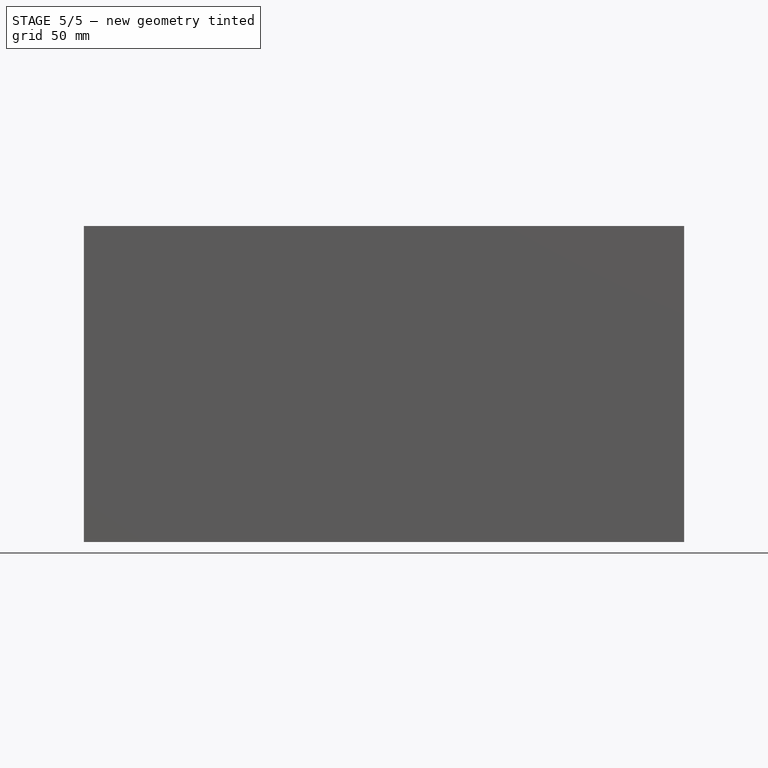
[diagram: stage 5 of 5 — front view after this stage's code; geometry added in this stage tinted green]
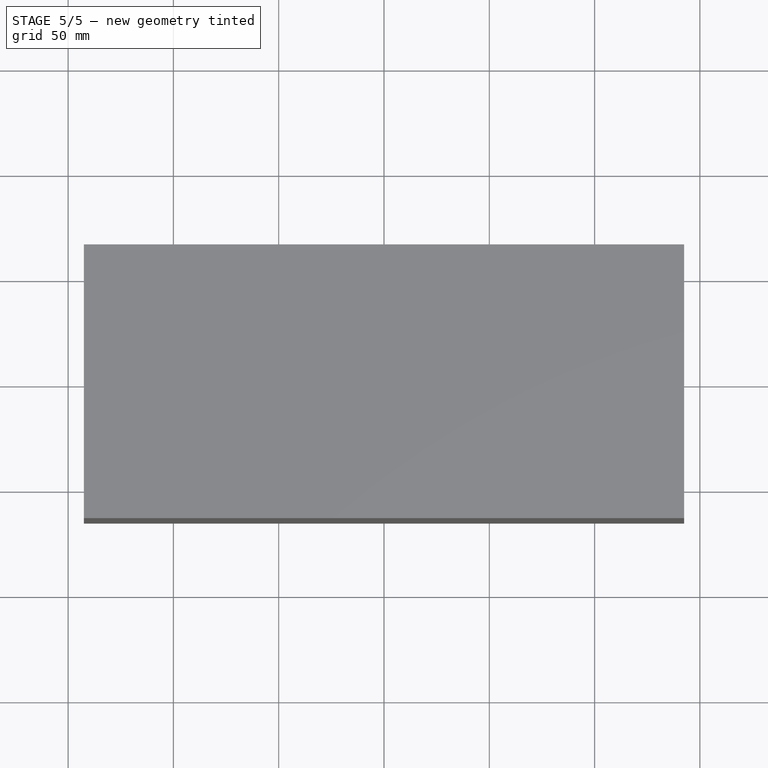
[diagram: stage 5 of 5 — top view after this stage's code; geometry added in this stage tinted green]
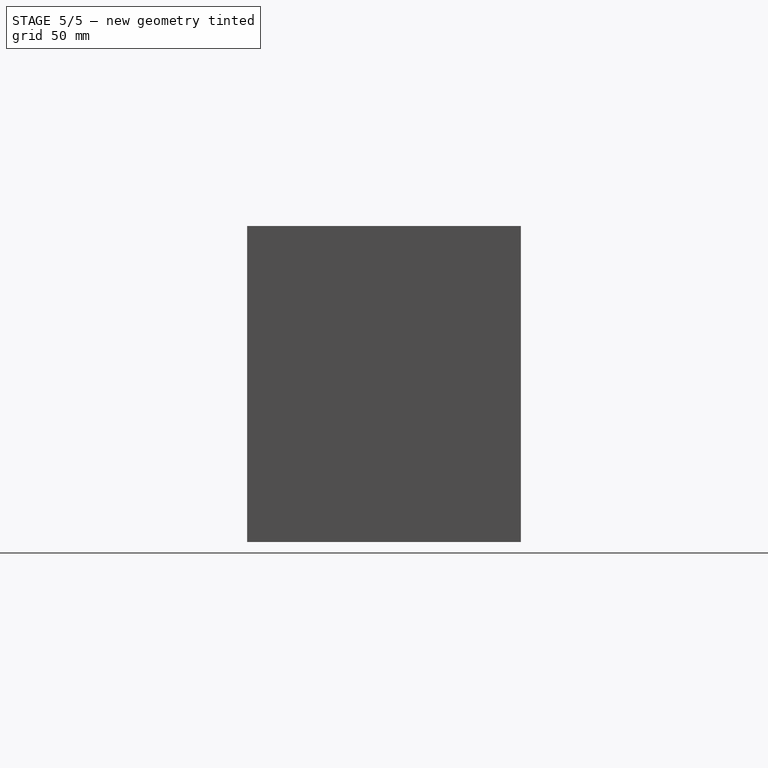
[diagram: stage 5 of 5 — right view after this stage's code; geometry added in this stage tinted green]
FEATURE [Sketcher::SketchObject] Sketch001
  AttachmentSupport = -> [Thickness]
  FullyConstrained = true
  MapMode = 5
  Placement = pos=(0,0,75) rot=(0,0,1;0rad)
  sketch-geometry (8):
    g0: LineSegment StartX=20 StartY=15.5 StartZ=0 EndX=20 EndY=-15.5 EndZ=0
    g1: LineSegment StartX=20 StartY=-15.5 StartZ=0 EndX=42 EndY=-15.5 EndZ=0
    g2: LineSegment StartX=42 StartY=-15.5 StartZ=0 EndX=42 EndY=15.5 EndZ=0
    g3: LineSegment StartX=42 StartY=15.5 StartZ=0 EndX=20 EndY=15.5 EndZ=0
    g4: LineSegment StartX=-42 StartY=15.5 StartZ=0 EndX=-42 EndY=-15.5 EndZ=0
    g5: LineSegment StartX=-42 StartY=-15.5 StartZ=0 EndX=-20 EndY=-15.5 EndZ=0
    g6: LineSegment StartX=-20 StartY=-15.5 StartZ=0 EndX=-20 EndY=15.5 EndZ=0
    g7: LineSegment StartX=-20 StartY=15.5 StartZ=0 EndX=-42 EndY=15.5 EndZ=0
  constraints (23):
    c: Coincident(g0,g1)
    c: Coincident(g1,g2)
    c: Coincident(g2,g3)
    c: Coincident(g3,g0)
    c: Vertical(g0)
    c: Vertical(g2)
    c: Horizontal(g1)
    c: Horizontal(g3)
    c: Coincident(g4,g5)
    c: Coincident(g5,g6)
    c: Coincident(g6,g7)
    c: Coincident(g7,g4)
    c: Vertical(g4)
    c: Vertical(g6)
    c: Horizontal(g5)
    c: Horizontal(g7)
    c: Symmetric(g6,g0,g-1)
    c: Equal(g7,g3)
    c: Equal(g0,g6)
    c: DistanceY(g2,g2) = 31
    c: DistanceX(g1,g1) = 22
    c: Horizontal(g5,g0)
    c: DistanceX(g5,g0) = 40
FEATURE [PartDesign::Pocket] Pocket
  BaseFeature = -> Thickness
  Direction = (0,0,-1)
  Length = 5
  Length2 = 5
  Profile = -> Sketch001
  ReferenceAxis = -> Sketch001 [N_Axis]
  Suppressed = false
  Type = 0
FEATURE [Spreadsheet::Sheet] Spreadsheet  label="q"
  cells = A1='right width; B1(right_width)=285; A2='right depth; B2(right_depth)=130; A3='right height; B3(right_height)=150; A5='switch width; B5(switch_width)=22; A6='switch depth; B6(switch_depth)=31; A7='wall; B7(wall)=3; A9='power inlet width; B9(power_inlet_width)=27; A10='power inlet height; B10(power_inlet_height)=19.5; A11='power inlet screw; B11(power_inlet_screw)=4.6; C11='for a threaded insert; A12='power inlet c2c; B12(power_inlet_c2c)=40; A14='power socket width; B14(power_socket_width)=24; A15='power socket height; B15(power_socket_height)=23; A17='left width; A18='left depth; A19='left height
FEATURE [Sketcher::SketchObject] Sketch002
  AttachmentSupport = -> [XY_Plane001]
  FullyConstrained = false
  MapMode = 5
  expr: Constraints[18] = <<q>>.switch_width
  expr: Constraints[19] = <<q>>.switch_depth
  sketch-geometry (8):
    g0: LineSegment StartX=-11 StartY=15.5 StartZ=0 EndX=-11 EndY=-15.5 EndZ=0
    g1: LineSegment StartX=-11 StartY=-15.5 StartZ=0 EndX=11 EndY=-15.5 EndZ=0
    g2: LineSegment StartX=11 StartY=-15.5 StartZ=0 EndX=11 EndY=15.5 EndZ=0
    g3: LineSegment StartX=11 StartY=15.5 StartZ=0 EndX=-11 EndY=15.5 EndZ=0
    g4: LineSegment StartX=-25.7473 StartY=27.1714 StartZ=0 EndX=-25.7473 EndY=-27.1714 EndZ=0
    g5: LineSegment StartX=-25.7473 StartY=-27.1714 StartZ=0 EndX=25.7473 EndY=-27.1714 EndZ=0
    g6: LineSegment StartX=25.7473 StartY=-27.1714 StartZ=0 EndX=25.7473 EndY=27.1714 EndZ=0
    g7: LineSegment StartX=25.7473 StartY=27.1714 StartZ=0 EndX=-25.7473 EndY=27.1714 EndZ=0
  constraints (20):
    c: Coincident(g0,g1)
    c: Coincident(g1,g2)
    c: Coincident(g2,g3)
    c: Coincident(g3,g0)
    c: Vertical(g0)
    c: Vertical(g2)
    c: Horizontal(g1)
    c: Horizontal(g3)
    c: Coincident(g4,g5)
    c: Coincident(g5,g6)
    c: Coincident(g6,g7)
    c: Coincident(g7,g4)
    c: Vertical(g4)
    c: Vertical(g6)
    c: Horizontal(g5)
    c: Horizontal(g7)
    c: Symmetric(g4,g6,g-1)
    c: Symmetric(g2,g0,g-1)
    c: DistanceX(g3,g3) = 22
    c: DistanceY(g2,g2) = 31
FEATURE [PartDesign::Pad] Pad001
  Direction = (0,0,1)
  Length = 3
  Length2 = 10
  Profile = -> Sketch002
  ReferenceAxis = -> Sketch002 [N_Axis]
  Suppressed = false
  Type = 0
  expr: Length = <<q>>.wall
FEATURE [PartDesign::Chamfer] Chamfer
  Angle = 45
  Base = -> Pad001 [Face10,Face9]
  BaseFeature = -> Pad001
  ChamferType = 0
  FlipDirection = false
  Size = 1
  Size2 = 1
  SupportTransform = false
  Suppressed = false
  UseAllEdges = false
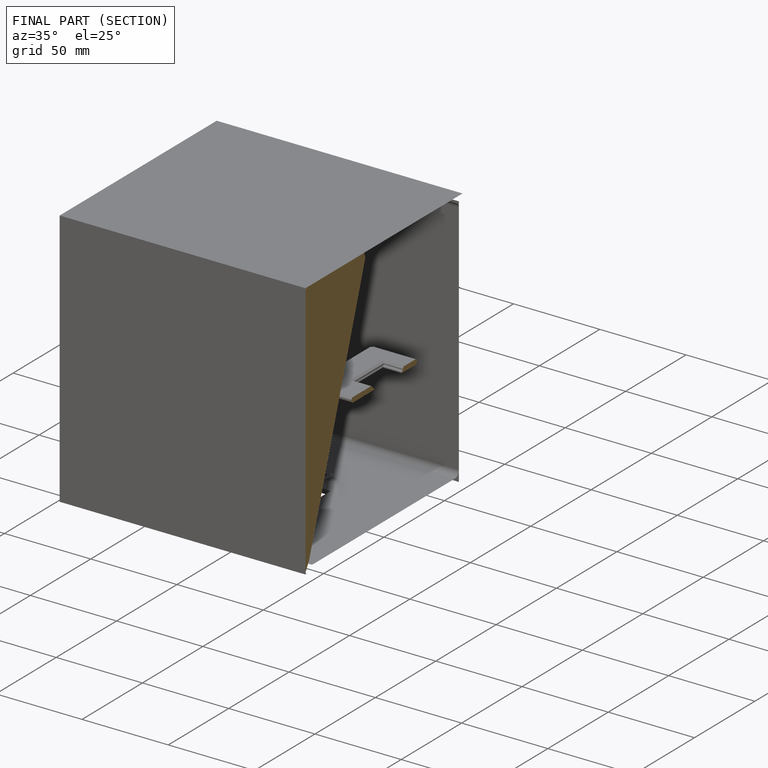
[diagram: finished part — half-section view (interior)]
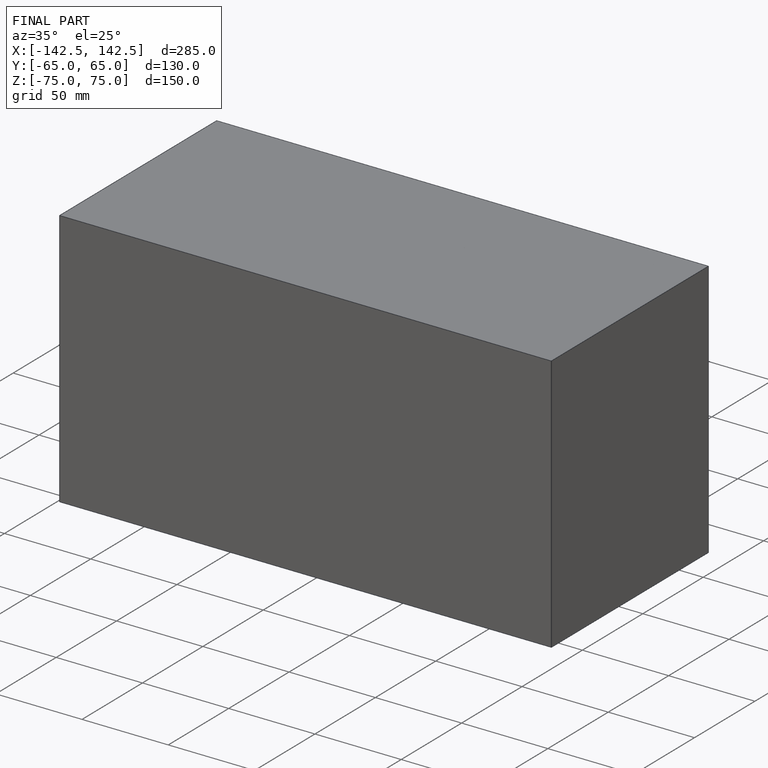
[diagram: finished part — iso view with bounding-box wireframe]
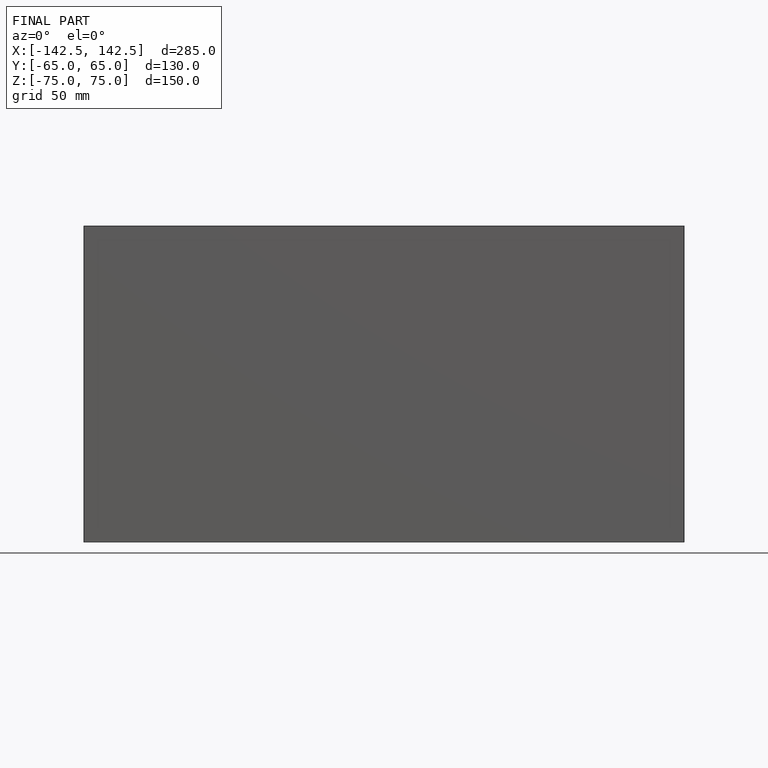
[diagram: finished part — front view with bounding-box wireframe]
